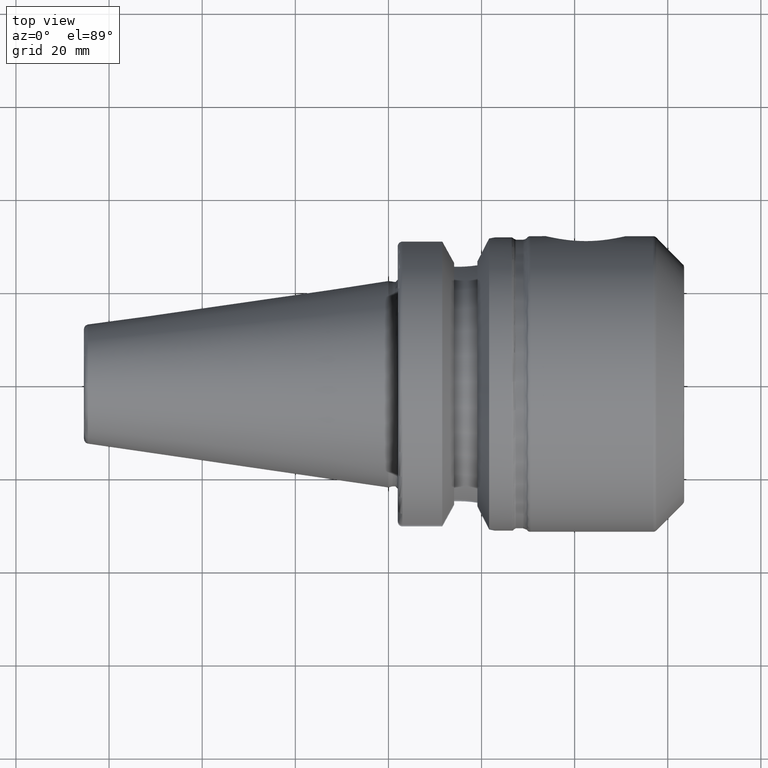
[diagram: clean part render]
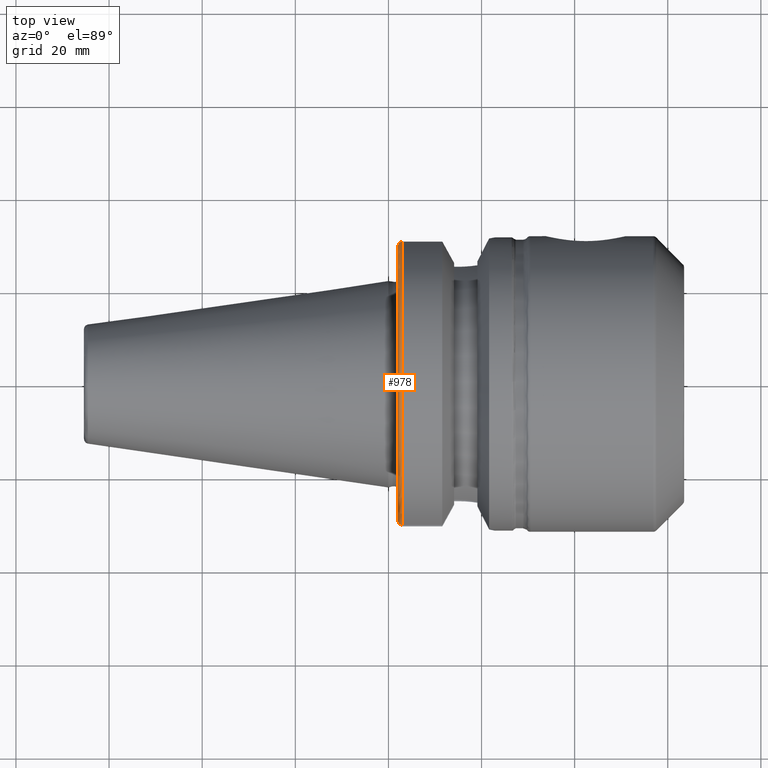
[diagram: same view with one face highlighted and labeled with its STEP entity id]
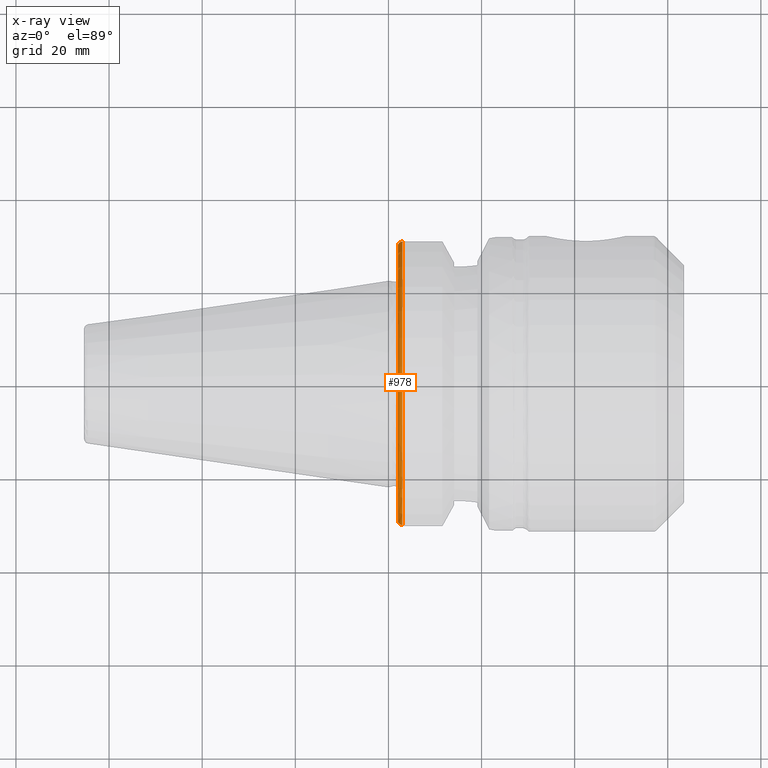
[diagram: x-ray of the same camera — body ghosted, the highlighted face saturated]
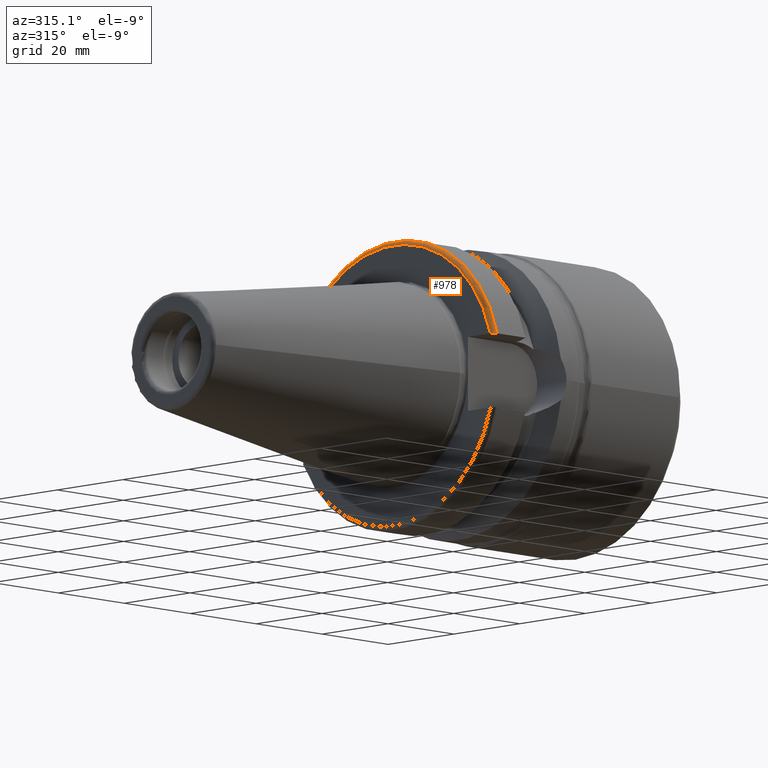
[diagram: same view with one face highlighted and labeled with its STEP entity id]
A machine part, top view. The second image highlights one B-rep face of the part: STEP entity #978.
The next image is the same camera in x-ray: the body ghosted, the highlighted face saturated — about 0% of this face is hidden behind the body in this view.
A second angle (auxiliary view) of the same face is appended — the face is thin or edge-on in the first view.
In plain terms, the highlighted toroidal blend (fillet) surface has major radius 30.5 mm and minor (blend) radius 1 mm.
Its self-contained STEP definition (entity closure, byte-faithful):
#108=CIRCLE('',#1112,31.5);
#109=CIRCLE('',#1113,30.5);
#140=TOROIDAL_SURFACE('',#1111,30.5,1.00000000000001);
#184=FACE_OUTER_BOUND('',#248,.T.);
#248=EDGE_LOOP('',(#836,#837,#838,#839));
#376=B_SPLINE_CURVE_WITH_KNOTS('',3,(#1717,#1718,#1719,#1720,#1721,#1722,
#1723,#1724,#1725,#1726),.UNSPECIFIED.,.F.,.F.,(4,2,2,2,4),(-0.150751871388631,
-0.111946181815504,-0.0738743445372396,-0.0366169489027566,0.),
 .UNSPECIFIED.);
#384=B_SPLINE_CURVE_WITH_KNOTS('',3,(#1858,#1859,#1860,#1861,#1862,#1863,
#1864,#1865,#1866,#1867),.UNSPECIFIED.,.F.,.F.,(4,2,2,2,4),(0.,0.0366169489027566,
0.0738743445372396,0.111946181815504,0.150751871388631),.UNSPECIFIED.);
#434=VERTEX_POINT('',#1714);
#435=VERTEX_POINT('',#1716);
#462=VERTEX_POINT('',#1855);
#463=VERTEX_POINT('',#1857);
#549=EDGE_CURVE('',#435,#434,#376,.T.);
#590=EDGE_CURVE('',#463,#462,#384,.T.);
#598=EDGE_CURVE('',#463,#434,#108,.T.);
#599=EDGE_CURVE('',#462,#435,#109,.T.);
#836=ORIENTED_EDGE('',*,*,#549,.T.);
#837=ORIENTED_EDGE('',*,*,#598,.F.);
#838=ORIENTED_EDGE('',*,*,#590,.T.);
#839=ORIENTED_EDGE('',*,*,#599,.T.);
#978=ADVANCED_FACE('',(#184),#140,.T.);
#1111=AXIS2_PLACEMENT_3D('',#1883,#1380,#1381);
#1112=AXIS2_PLACEMENT_3D('',#1884,#1382,#1383);
#1113=AXIS2_PLACEMENT_3D('',#1885,#1384,#1385);
#1380=DIRECTION('center_axis',(1.,0.,0.));
#1381=DIRECTION('ref_axis',(0.,-1.22464679914735E-16,1.));
#1382=DIRECTION('center_axis',(1.,0.,0.));
#1383=DIRECTION('ref_axis',(0.,0.,-1.));
#1384=DIRECTION('center_axis',(1.,0.,0.));
#1385=DIRECTION('ref_axis',(0.,0.,-1.));
#1714=CARTESIAN_POINT('',(2.99999999999999,-30.4540227227866,8.05));
#1716=CARTESIAN_POINT('',(1.99999999999999,-29.4184890842477,8.05));
#1717=CARTESIAN_POINT('Ctrl Pts',(1.99999999999999,-29.4184890842477,8.05));
#1718=CARTESIAN_POINT('Ctrl Pts',(1.99999999999999,-29.5478413828248,8.05));
#1719=CARTESIAN_POINT('Ctrl Pts',(2.02950258743517,-29.7002346307938,8.05));
#1720=CARTESIAN_POINT('Ctrl Pts',(2.12587454939785,-29.9376810968085,8.05));
#1721=CARTESIAN_POINT('Ctrl Pts',(2.2089547883793,-30.0653098968133,8.05));
#1722=CARTESIAN_POINT('Ctrl Pts',(2.38465986426588,-30.2446912007727,8.05));
#1723=CARTESIAN_POINT('Ctrl Pts',(2.50758665841081,-30.3289456947341,8.05));
#1724=CARTESIAN_POINT('Ctrl Pts',(2.73442803339431,-30.4247631098996,8.05));
#1725=CARTESIAN_POINT('Ctrl Pts',(2.87794350365748,-30.4540227227866,8.05));
#1726=CARTESIAN_POINT('Ctrl Pts',(3.,-30.4540227227866,8.05));
#1855=CARTESIAN_POINT('',(1.99999999999999,29.4184890842477,8.05));
#1857=CARTESIAN_POINT('',(2.99999999999999,30.4540227227866,8.05));
#1858=CARTESIAN_POINT('Ctrl Pts',(3.,30.4540227227866,8.05));
#1859=CARTESIAN_POINT('Ctrl Pts',(2.87794350365748,30.4540227227866,8.05));
#1860=CARTESIAN_POINT('Ctrl Pts',(2.73442803339431,30.4247631098996,8.05));
#1861=CARTESIAN_POINT('Ctrl Pts',(2.50758665841081,30.3289456947341,8.05));
#1862=CARTESIAN_POINT('Ctrl Pts',(2.38465986426588,30.2446912007727,8.05));
#1863=CARTESIAN_POINT('Ctrl Pts',(2.2089547883793,30.0653098968133,8.05));
#1864=CARTESIAN_POINT('Ctrl Pts',(2.12587454939785,29.9376810968085,8.05));
#1865=CARTESIAN_POINT('Ctrl Pts',(2.02950258743517,29.7002346307938,8.05));
#1866=CARTESIAN_POINT('Ctrl Pts',(1.99999999999999,29.5478413828248,8.05));
#1867=CARTESIAN_POINT('Ctrl Pts',(1.99999999999999,29.4184890842477,8.05));
#1883=CARTESIAN_POINT('Origin',(3.,0.,0.));
#1884=CARTESIAN_POINT('Origin',(2.99999999999999,0.,0.));
#1885=CARTESIAN_POINT('Origin',(1.99999999999999,0.,0.));